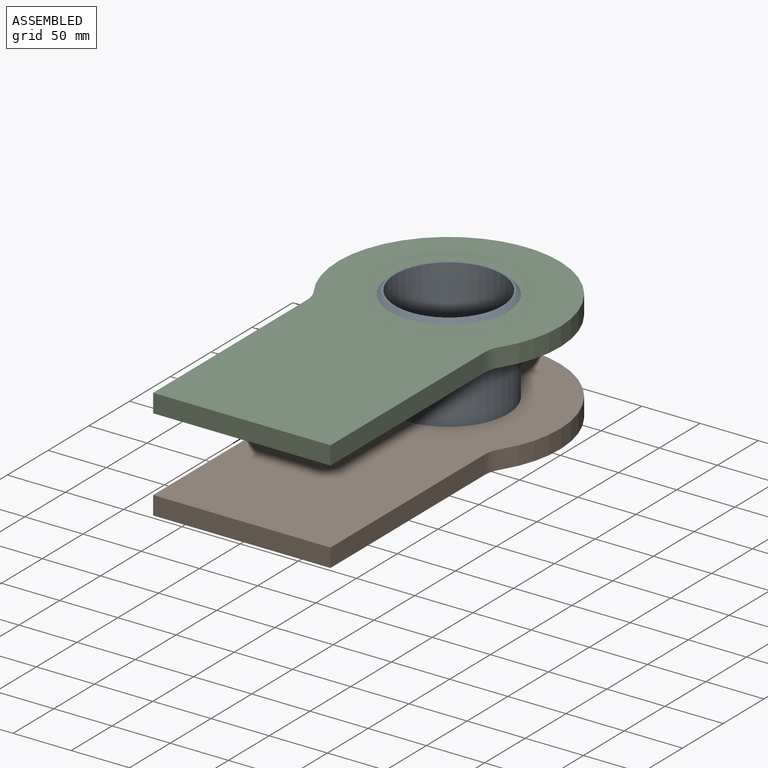
[diagram: assembled view]
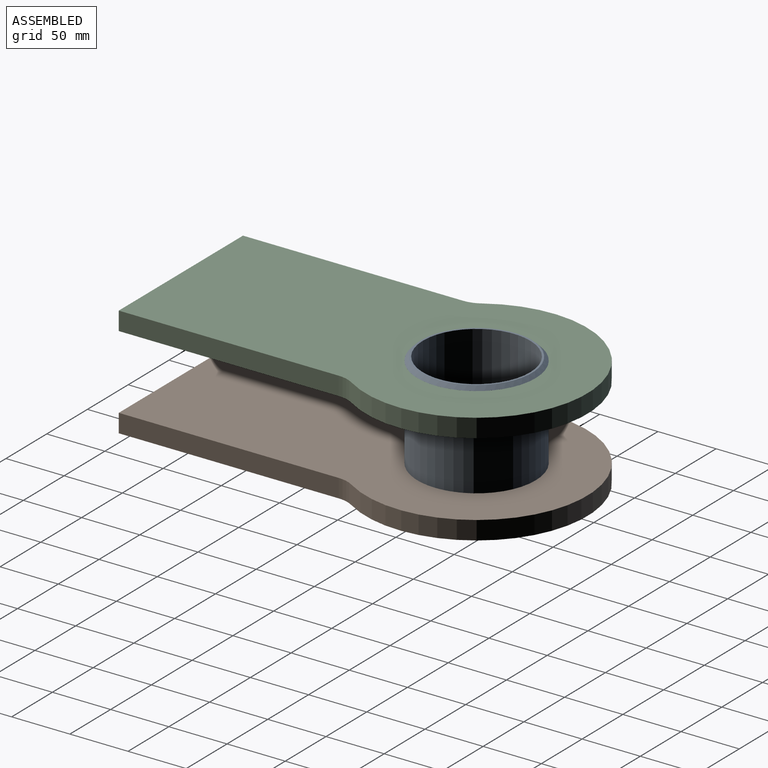
[diagram: assembled view, second angle]
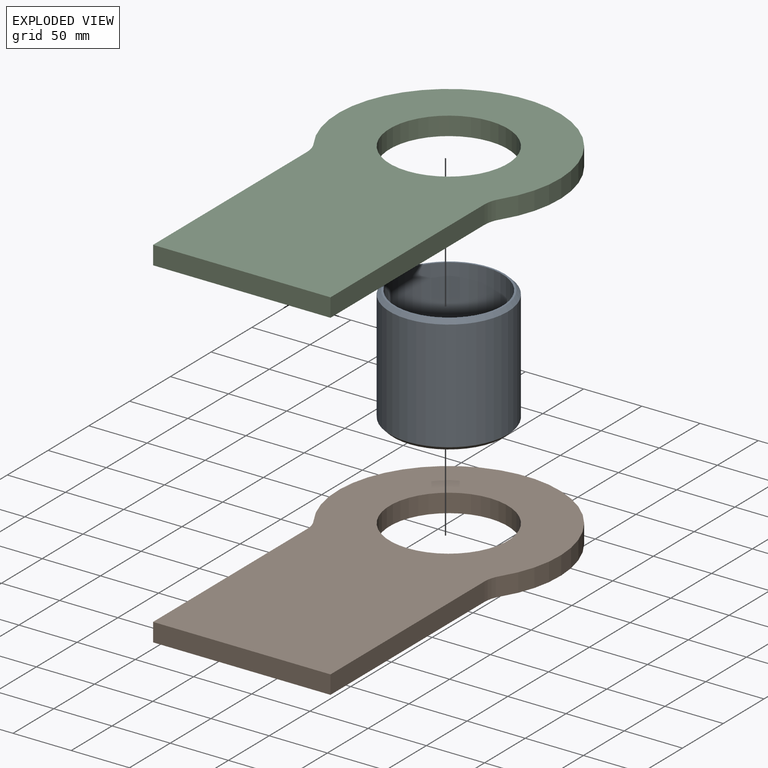
[diagram: exploded view]
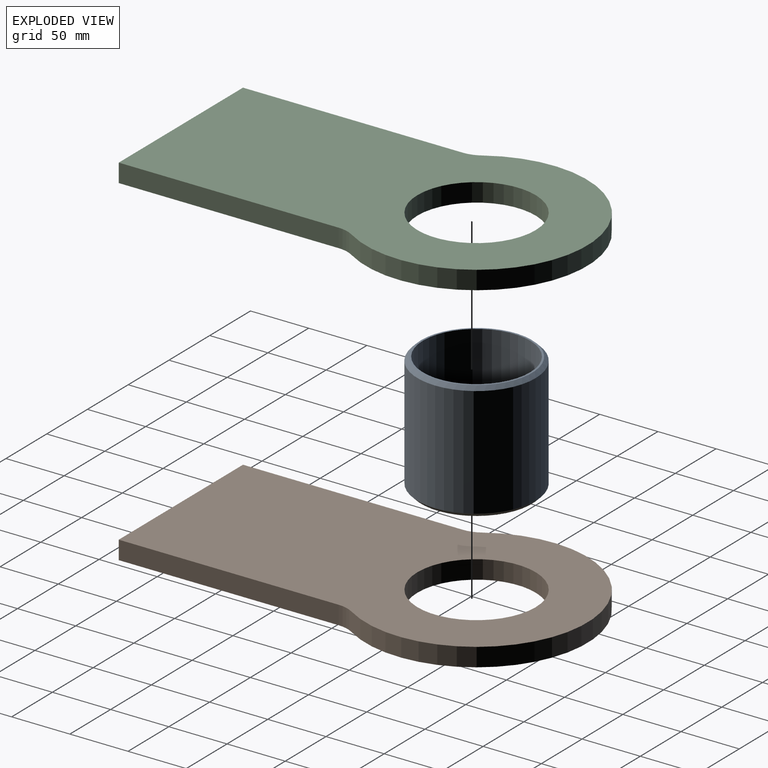
[diagram: exploded view, second angle]
ASSEMBLY  parts=3 mates=2
PART A: 6 faces, bbox 101.6x101.6x101.6 mm
  f0: plane 95.25x95.25mm, normal (0,0,1), area 467.1mm2, adj f3,f5
  f1: plane 95.25x95.25mm, normal (0,0,-1), area 467.1mm2, adj f3,f4
  f2: cylinder r=50.8mm len=101.6mm, axis (0,0,-1), area 30402.4mm2, adj f4,f5
  f3: cylinder r=46.04mm len=101.6mm, axis (0,0,-1), area 29389mm2, adj f0,f1
  f4: cone r=50.8mm half-angle=45deg, axis (0,0,1), area 1388.4mm2, adj f1,f2
  f5: cone r=47.62mm half-angle=45deg, axis (0,0,-1), area 1388.4mm2, adj f0,f2
PART B: 9 faces, bbox 190.5x349.3x15.9 mm
  f0: plane 349.25x190.5mm, normal (0,0,1), area 46348.4mm2, adj f2,f3,f4,f5,f6,f7,f8
  f1: plane 349.25x190.5mm, normal (0,0,-1), area 46348.4mm2, adj f2,f3,f4,f5,f6,f7,f8
  f2: plane 188.93x15.88mm, normal (-1,0,0), area 2999.3mm2, adj f0,f1,f3,f7
  f3: plane 152.4x15.88mm, normal (0,-1,0), area 2419.3mm2, adj f0,f1,f2,f4
  f4: plane 188.93x15.88mm, normal (1,0,0), area 2999.3mm2, adj f0,f1,f3,f8
  f5: cylinder r=95.25mm len=190.5mm, axis (0,0,-1), area 6473mm2, adj f0,f1,f7,f8
  f6: cylinder r=50.8mm len=101.6mm, axis (0,0,-1), area 5067.1mm2, adj f0,f1
  f7: cylinder r=25.4mm len=15.88mm, axis (0,0,-1), area 229.7mm2, adj f0,f1,f2,f5
  f8: cylinder r=25.4mm len=15.88mm, axis (0,0,-1), area 229.7mm2, adj f0,f1,f4,f5
PART C: same geometry as B
PLACE A rot(axis=(0.01,-1,-0.04),0deg) t=(27.67,273.71,-109.14)mm
PLACE B rot(axis=(0.01,-1,-0.04),0deg) t=(27.67,273.71,-148.82)mm
PLACE C rot(axis=(0.01,-1,-0.04),0deg) t=(27.67,273.71,-69.45)mm
MATE fastened B.f5 <-> A.f2  axis (0,0,-1) through (27.67,273.71,-156.76)mm
MATE fastened A.f2 <-> C.f5  axis (0,0,-1) through (27.67,273.71,-61.51)mm
